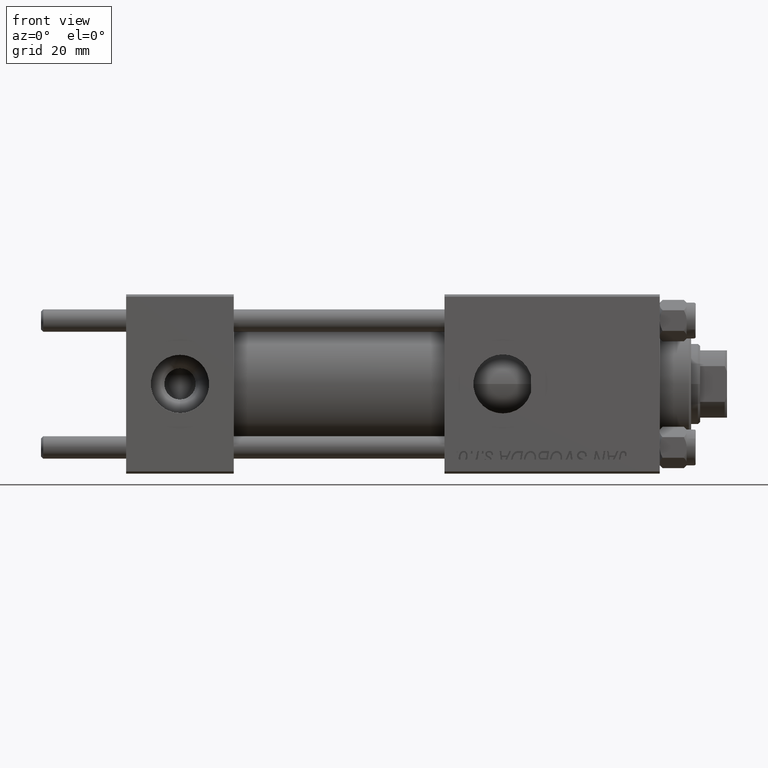
[diagram: clean part render]
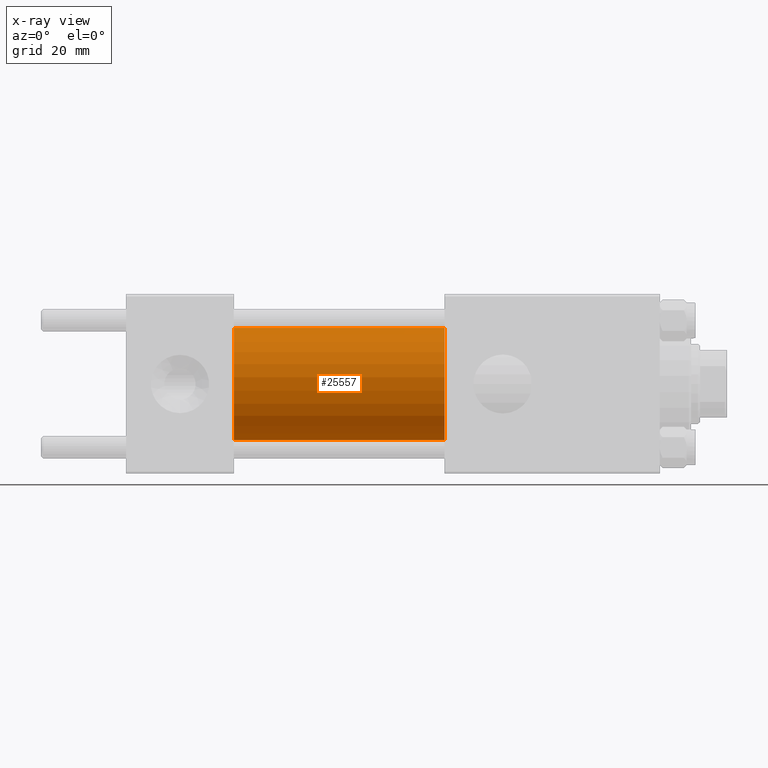
[diagram: x-ray — body ghosted, one internal face saturated and labeled with its STEP entity id]
A machine part, front view, then the same camera in x-ray: the body is ghosted and one INTERNAL B-rep face — a face not visible from any outside direction — is saturated and labeled: STEP entity #25557.
In plain terms, the highlighted cylindrical surface (partial cylindrical patch) has radius 12.5 mm, axis along (-1, -0, -0).
Its self-contained STEP definition (entity closure, byte-faithful):
#1819 = EDGE_LOOP ( 'NONE', ( #22306, #26107, #28982, #44621 ) ) ;
#3499 = CARTESIAN_POINT ( 'NONE',  ( 71.00000000000001421, 1.530808498934191127E-15, -12.49999999999999645 ) ) ;
#4666 = DIRECTION ( 'NONE',  ( -1.000000000000000000, -0.000000000000000000, -0.000000000000000000 ) ) ;
#8316 = DIRECTION ( 'NONE',  ( -1.000000000000000000, -0.000000000000000000, -0.000000000000000000 ) ) ;
#9267 = DIRECTION ( 'NONE',  ( 1.000000000000000000, 0.000000000000000000, 0.000000000000000000 ) ) ;
#10540 = EDGE_CURVE ( 'NONE', #36157, #18071, #42631, .T. ) ;
#12786 = DIRECTION ( 'NONE',  ( 0.000000000000000000, 0.000000000000000000, -1.000000000000000000 ) ) ;
#15700 = CIRCLE ( 'NONE', #43814, 12.49999999999999645 ) ;
#16077 = CARTESIAN_POINT ( 'NONE',  ( 71.00000000000001421, 0.000000000000000000, 0.000000000000000000 ) ) ;
#16133 = CARTESIAN_POINT ( 'NONE',  ( 24.00000000000000000, 1.530808498934191127E-15, -12.49999999999999645 ) ) ;
#16373 = CARTESIAN_POINT ( 'NONE',  ( 71.00000000000001421, 0.000000000000000000, 12.49999999999999645 ) ) ;
#18071 = VERTEX_POINT ( 'NONE', #16133 ) ;
#18403 = CARTESIAN_POINT ( 'NONE',  ( 24.00000000000000000, 0.000000000000000000, 0.000000000000000000 ) ) ;
#21647 = EDGE_CURVE ( 'NONE', #32268, #49205, #35475, .T. ) ;
#22306 = ORIENTED_EDGE ( 'NONE', *, *, #29069, .T. ) ;
#22595 = CIRCLE ( 'NONE', #46642, 12.49999999999999645 ) ;
#23516 = CYLINDRICAL_SURFACE ( 'NONE', #40960, 12.49999999999999645 ) ;
#25557 = ADVANCED_FACE ( 'NONE', ( #34345 ), #23516, .F. ) ;
#25687 = DIRECTION ( 'NONE',  ( 1.000000000000000000, 0.000000000000000000, 0.000000000000000000 ) ) ;
#26107 = ORIENTED_EDGE ( 'NONE', *, *, #10540, .T. ) ;
#28982 = ORIENTED_EDGE ( 'NONE', *, *, #44275, .F. ) ;
#29069 = EDGE_CURVE ( 'NONE', #32268, #36157, #22595, .T. ) ;
#31966 = VECTOR ( 'NONE', #8316, 1000.000000000000000 ) ;
#32268 = VERTEX_POINT ( 'NONE', #32635 ) ;
#32516 = VECTOR ( 'NONE', #4666, 1000.000000000000000 ) ;
#32635 = CARTESIAN_POINT ( 'NONE',  ( 71.00000000000001421, 0.000000000000000000, 12.49999999999999645 ) ) ;
#34099 = DIRECTION ( 'NONE',  ( 0.000000000000000000, 0.000000000000000000, 1.000000000000000000 ) ) ;
#34345 = FACE_OUTER_BOUND ( 'NONE', #1819, .T. ) ;
#35475 = LINE ( 'NONE', #16373, #31966 ) ;
#36157 = VERTEX_POINT ( 'NONE', #3499 ) ;
#37503 = DIRECTION ( 'NONE',  ( 0.000000000000000000, 0.000000000000000000, -1.000000000000000000 ) ) ;
#40960 = AXIS2_PLACEMENT_3D ( 'NONE', #42869, #42131, #34099 ) ;
#41431 = CARTESIAN_POINT ( 'NONE',  ( 24.00000000000000000, 0.000000000000000000, 12.49999999999999645 ) ) ;
#42131 = DIRECTION ( 'NONE',  ( -1.000000000000000000, -0.000000000000000000, -0.000000000000000000 ) ) ;
#42631 = LINE ( 'NONE', #46637, #32516 ) ;
#42869 = CARTESIAN_POINT ( 'NONE',  ( 71.00000000000001421, 0.000000000000000000, 0.000000000000000000 ) ) ;
#43814 = AXIS2_PLACEMENT_3D ( 'NONE', #18403, #25687, #37503 ) ;
#44275 = EDGE_CURVE ( 'NONE', #49205, #18071, #15700, .T. ) ;
#44621 = ORIENTED_EDGE ( 'NONE', *, *, #21647, .F. ) ;
#46637 = CARTESIAN_POINT ( 'NONE',  ( 71.00000000000001421, 1.530808498934191127E-15, -12.49999999999999645 ) ) ;
#46642 = AXIS2_PLACEMENT_3D ( 'NONE', #16077, #9267, #12786 ) ;
#49205 = VERTEX_POINT ( 'NONE', #41431 ) ;